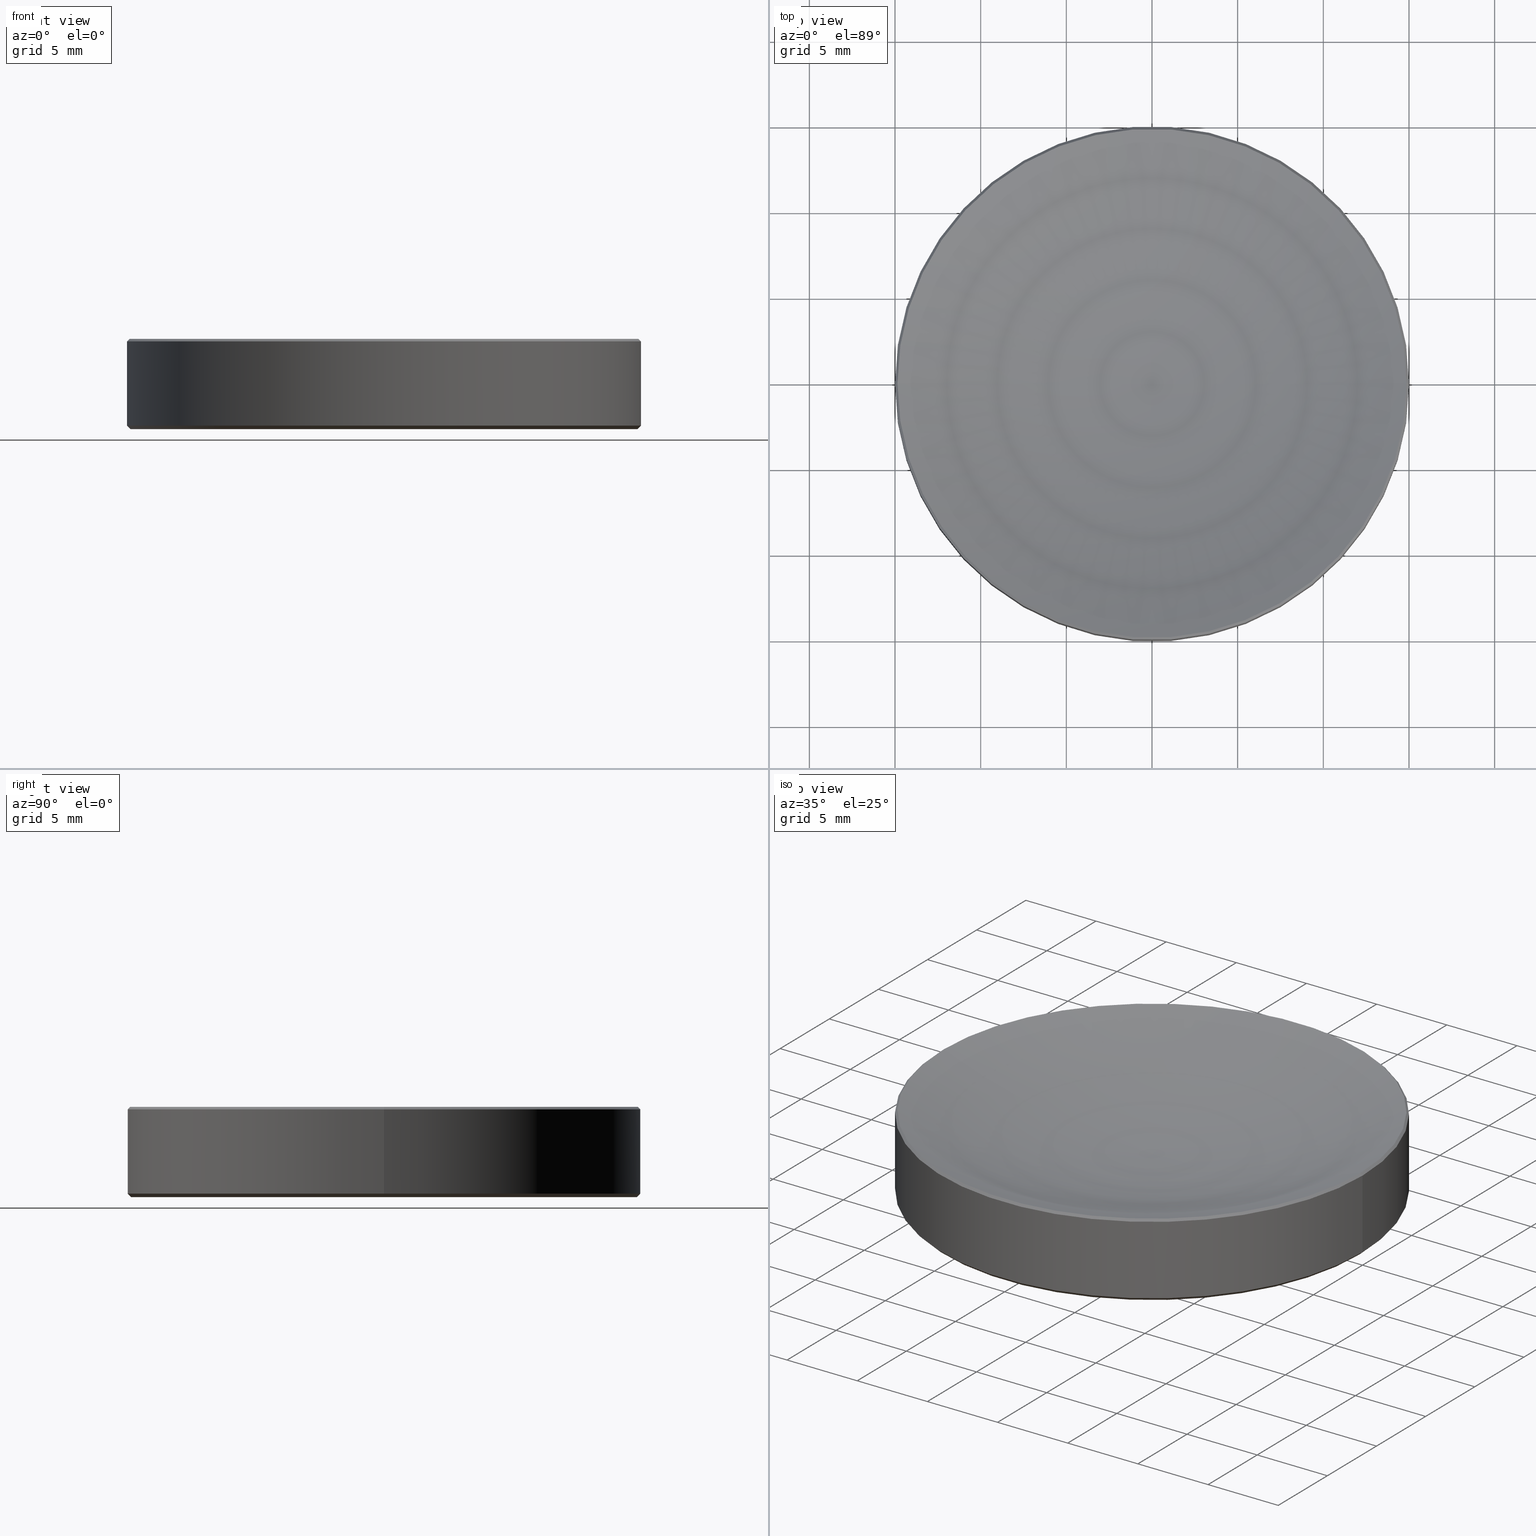
[diagram: canonical four-view strip — front | top / right | iso, engineering-drawing reading convention]
A machine part, canonical four-view strip (front | top / right | iso — engineering-drawing reading convention). The complete STEP part file that produces these views, byte-faithful:
ISO-10303-21;
HEADER;
FILE_DESCRIPTION (( 'STEP AP214' ),
    '1' );
FILE_NAME ('GL13-030-080.STEP',
    '2022-10-25T13:46:05',
    ( '' ),
    ( '' ),
    'SwSTEP 2.0',
    'SolidWorks 2022',
    '' );
FILE_SCHEMA (( 'AUTOMOTIVE_DESIGN' ));
ENDSEC;

DATA;
#1 = FACE_OUTER_BOUND ( 'NONE', #213, .T. ) ;
#2 = ORIENTED_EDGE ( 'NONE', *, *, #79, .F. ) ;
#3 = AXIS2_PLACEMENT_3D ( 'NONE', #100, #265, #137 ) ;
#4 = LINE ( 'NONE', #237, #114 ) ;
#5 = ORIENTED_EDGE ( 'NONE', *, *, #55, .F. ) ;
#6 = DIRECTION ( 'NONE',  ( -0.000000000000000000, -0.000000000000000000, 1.000000000000000000 ) ) ;
#7 = DIRECTION ( 'NONE',  ( 1.000000000000000000, 0.000000000000000000, 0.000000000000000000 ) ) ;
#8 = CARTESIAN_POINT ( 'NONE',  ( 15.00000000000000000, 0.000000000000000000, 2.500000000000000000 ) ) ;
#9 = DIRECTION ( 'NONE',  ( -1.000000000000000000, 0.000000000000000000, 0.000000000000000000 ) ) ;
#10 = CIRCLE ( 'NONE', #167, 41.30000000000000426 ) ;
#11 = SURFACE_SIDE_STYLE ('',( #203 ) ) ;
#12 = PRODUCT_DEFINITION ( 'δ֪', '', #76, #192 ) ;
#13 = DIRECTION ( 'NONE',  ( 0.000000000000000000, 0.000000000000000000, -1.000000000000000000 ) ) ;
#14 = DIRECTION ( 'NONE',  ( 1.000000000000000000, 0.000000000000000000, 0.000000000000000000 ) ) ;
#15 = ADVANCED_FACE ( 'NONE', ( #209 ), #138, .F. ) ;
#16 = CARTESIAN_POINT ( 'NONE',  ( 14.79999999999999361, 0.000000000000000000, 9.184850993605147944E-16 ) ) ;
#17 = AXIS2_PLACEMENT_3D ( 'NONE', #183, #13, #103 ) ;
#18 = CIRCLE ( 'NONE', #126, 15.00000000000000000 ) ;
#19 = PRODUCT ( 'GL13-030-080', 'GL13-030-080', '', ( #261 ) ) ;
#20 = CLOSED_SHELL ( 'NONE', ( #154, #112, #72, #15, #257, #184, #43, #93, #36 ) ) ;
#21 = ORIENTED_EDGE ( 'NONE', *, *, #238, .T. ) ;
#22 = EDGE_CURVE ( 'NONE', #249, #136, #110, .T. ) ;
#23 = ORIENTED_EDGE ( 'NONE', *, *, #62, .T. ) ;
#24 = VERTEX_POINT ( 'NONE', #89 ) ;
#25 = AXIS2_PLACEMENT_3D ( 'NONE', #155, #212, #134 ) ;
#26 = DIRECTION ( 'NONE',  ( 1.000000000000000000, 0.000000000000000000, 0.000000000000000000 ) ) ;
#27 = EDGE_CURVE ( 'NONE', #193, #191, #4, .T. ) ;
#28 = CARTESIAN_POINT ( 'NONE',  ( 0.000000000000000000, 0.000000000000000000, 9.184850993605147944E-16 ) ) ;
#29 = SURFACE_STYLE_FILL_AREA ( #197 ) ;
#30 = VERTEX_POINT ( 'NONE', #92 ) ;
#31 = CARTESIAN_POINT ( 'NONE',  ( 0.000000000000000000, 0.000000000000000000, 0.2000000000000048683 ) ) ;
#32 = AXIS2_PLACEMENT_3D ( 'NONE', #28, #111, #174 ) ;
#33 = CARTESIAN_POINT ( 'NONE',  ( -14.79999999999999361, 1.824723730729555837E-15, 9.184850993605147944E-16 ) ) ;
#34 = CIRCLE ( 'NONE', #246, 14.79999999999999361 ) ;
#35 = CARTESIAN_POINT ( 'NONE',  ( -15.00000000000000000, 1.836970198721029589E-15, 2.500000000000000000 ) ) ;
#36 = ADVANCED_FACE ( 'NONE', ( #173 ), #231, .T. ) ;
#37 = DIRECTION ( 'NONE',  ( 1.000000000000000000, 0.000000000000000000, 0.000000000000000000 ) ) ;
#38 =( NAMED_UNIT ( * ) PLANE_ANGLE_UNIT ( ) SI_UNIT ( $, .RADIAN. ) );
#39 =( LENGTH_UNIT ( ) NAMED_UNIT ( * ) SI_UNIT ( .MILLI., .METRE. ) );
#40 = CONICAL_SURFACE ( 'NONE', #150, 14.85587050448260449, 0.7853981633974843612 ) ;
#41 = PLANE ( 'NONE',  #32 ) ;
#42 = ORIENTED_EDGE ( 'NONE', *, *, #67, .T. ) ;
#43 = ADVANCED_FACE ( 'NONE', ( #172 ), #41, .F. ) ;
#44 = AXIS2_PLACEMENT_3D ( 'NONE', #182, #266, #102 ) ;
#45 = EDGE_LOOP ( 'NONE', ( #232, #230, #152, #153 ) ) ;
#46 = APPLICATION_CONTEXT ( 'automotive_design' ) ;
#47 = AXIS2_PLACEMENT_3D ( 'NONE', #220, #179, #121 ) ;
#48 = VERTEX_POINT ( 'NONE', #127 ) ;
#49 =( LENGTH_UNIT ( ) NAMED_UNIT ( * ) SI_UNIT ( .MILLI., .METRE. ) );
#50 = ORIENTED_EDGE ( 'NONE', *, *, #62, .F. ) ;
#51 = PRESENTATION_LAYER_ASSIGNMENT (  '', '', ( #163 ) ) ;
#52 = FACE_OUTER_BOUND ( 'NONE', #96, .T. ) ;
#53 =( NAMED_UNIT ( * ) PLANE_ANGLE_UNIT ( ) SI_UNIT ( $, .RADIAN. ) );
#54 = SURFACE_STYLE_USAGE ( .BOTH. , #236 ) ;
#55 = EDGE_CURVE ( 'NONE', #168, #24, #133, .T. ) ;
#56 = PRESENTATION_STYLE_ASSIGNMENT (( #158 ) ) ;
#57 = TOROIDAL_SURFACE ( 'NONE', #234, 0.0006800010524327451678, 41.30000000000000426 ) ;
#58 = LINE ( 'NONE', #35, #202 ) ;
#59 = AXIS2_PLACEMENT_3D ( 'NONE', #210, #190, #189 ) ;
#60 = CARTESIAN_POINT ( 'NONE',  ( 0.000000000000000000, 0.000000000000000000, 2.500000000000000000 ) ) ;
#61 = FACE_OUTER_BOUND ( 'NONE', #63, .T. ) ;
#62 = EDGE_CURVE ( 'NONE', #48, #249, #10, .T. ) ;
#63 = EDGE_LOOP ( 'NONE', ( #229, #23, #66 ) ) ;
#64 = APPLICATION_CONTEXT ( 'automotive_design' ) ;
#65 = ORIENTED_EDGE ( 'NONE', *, *, #55, .T. ) ;
#66 = ORIENTED_EDGE ( 'NONE', *, *, #22, .T. ) ;
#67 = EDGE_CURVE ( 'NONE', #191, #24, #221, .T. ) ;
#68 = ORIENTED_EDGE ( 'NONE', *, *, #238, .F. ) ;
#69 = EDGE_LOOP ( 'NONE', ( #50, #170, #235 ) ) ;
#70 = EDGE_LOOP ( 'NONE', ( #85, #186 ) ) ;
#71 = CARTESIAN_POINT ( 'NONE',  ( 0.000000000000000000, 0.000000000000000000, 0.2000000000000048683 ) ) ;
#72 = ADVANCED_FACE ( 'NONE', ( #239 ), #181, .T. ) ;
#73 = UNCERTAINTY_MEASURE_WITH_UNIT (LENGTH_MEASURE( 1.000000000000000082E-05 ), #97, 'distance_accuracy_value', 'NONE');
#74 = DIRECTION ( 'NONE',  ( -0.000000000000000000, -0.000000000000000000, 1.000000000000000000 ) ) ;
#75 = AXIS2_PLACEMENT_3D ( 'NONE', #71, #101, #161 ) ;
#76 = PRODUCT_DEFINITION_FORMATION_WITH_SPECIFIED_SOURCE ( '�κ�', '', #19, .NOT_KNOWN. ) ;
#77 = APPLICATION_PROTOCOL_DEFINITION ( 'draft international standard', 'automotive_design', 1998, #64 ) ;
#78 = DIRECTION ( 'NONE',  ( 0.000000000000000000, 0.000000000000000000, -1.000000000000000000 ) ) ;
#79 = EDGE_CURVE ( 'NONE', #193, #132, #139, .T. ) ;
#80 = DIRECTION ( 'NONE',  ( 1.000000000000000000, 0.000000000000000000, 0.000000000000000000 ) ) ;
#81 =( NAMED_UNIT ( * ) SI_UNIT ( $, .STERADIAN. ) SOLID_ANGLE_UNIT ( ) );
#82 = CARTESIAN_POINT ( 'NONE',  ( 0.000000000000000000, 0.000000000000000000, 5.264129495517397395 ) ) ;
#83 = EDGE_CURVE ( 'NONE', #30, #168, #58, .T. ) ;
#84 = CARTESIAN_POINT ( 'NONE',  ( 14.85587050448259916, 0.000000000000000000, 5.264129495517397395 ) ) ;
#85 = ORIENTED_EDGE ( 'NONE', *, *, #79, .T. ) ;
#86 = AXIS2_PLACEMENT_3D ( 'NONE', #82, #166, #185 ) ;
#87 = DIRECTION ( 'NONE',  ( -0.7071067811865729968, 0.000000000000000000, -0.7071067811865220376 ) ) ;
#88 = COLOUR_RGB ( '',1.000000000000000000, 1.000000000000000000, 1.000000000000000000 ) ;
#89 = CARTESIAN_POINT ( 'NONE',  ( 15.00000000000000000, 0.000000000000000000, 5.120000000000013429 ) ) ;
#90 = ORIENTED_EDGE ( 'NONE', *, *, #27, .T. ) ;
#91 = MECHANICAL_DESIGN_GEOMETRIC_PRESENTATION_REPRESENTATION (  '', ( #160 ), #143 ) ;
#92 = CARTESIAN_POINT ( 'NONE',  ( -15.00000000000000000, 1.836970198721029589E-15, 0.2000000000000048683 ) ) ;
#93 = ADVANCED_FACE ( 'NONE', ( #52 ), #205, .T. ) ;
#94 = MANIFOLD_SOLID_BREP ( '����2', #20 ) ;
#95 = DIRECTION ( 'NONE',  ( 0.7071067811865505703, 0.000000000000000000, 0.7071067811865444641 ) ) ;
#96 = EDGE_LOOP ( 'NONE', ( #68, #2, #90, #129 ) ) ;
#97 =( LENGTH_UNIT ( ) NAMED_UNIT ( * ) SI_UNIT ( .MILLI., .METRE. ) );
#98 = LINE ( 'NONE', #175, #178 ) ;
#99 = DIRECTION ( 'NONE',  ( 1.000000000000000000, 0.000000000000000000, 0.000000000000000000 ) ) ;
#100 = CARTESIAN_POINT ( 'NONE',  ( 0.000000000000000000, 0.000000000000000000, 9.184850993605147944E-16 ) ) ;
#101 = DIRECTION ( 'NONE',  ( -0.000000000000000000, -0.000000000000000000, 1.000000000000000000 ) ) ;
#102 = DIRECTION ( 'NONE',  ( -1.000000000000000000, 1.224646799147353207E-16, 0.000000000000000000 ) ) ;
#103 = DIRECTION ( 'NONE',  ( -1.000000000000000000, 0.000000000000000000, 0.000000000000000000 ) ) ;
#104 = EDGE_LOOP ( 'NONE', ( #107, #165, #5, #254 ) ) ;
#105 = CARTESIAN_POINT ( 'NONE',  ( -15.00000000000000000, 1.836970198721029589E-15, 0.2000000000000048683 ) ) ;
#106 =( GEOMETRIC_REPRESENTATION_CONTEXT ( 3 ) GLOBAL_UNCERTAINTY_ASSIGNED_CONTEXT ( ( #142 ) ) GLOBAL_UNIT_ASSIGNED_CONTEXT ( ( #39, #38, #248 ) ) REPRESENTATION_CONTEXT ( 'NONE', 'WORKASPACE' ) );
#107 = ORIENTED_EDGE ( 'NONE', *, *, #22, .F. ) ;
#108 = EDGE_CURVE ( 'NONE', #191, #30, #18, .T. ) ;
#109 = ORIENTED_EDGE ( 'NONE', *, *, #140, .F. ) ;
#110 = CIRCLE ( 'NONE', #59, 14.85587050448260094 ) ;
#111 = DIRECTION ( 'NONE',  ( 0.000000000000000000, -0.000000000000000000, 1.000000000000000000 ) ) ;
#112 = ADVANCED_FACE ( 'NONE', ( #259 ), #162, .T. ) ;
#113 = EDGE_LOOP ( 'NONE', ( #227, #208, #65, #258 ) ) ;
#114 = VECTOR ( 'NONE', #95, 1000.000000000000000 ) ;
#115 = DIRECTION ( 'NONE',  ( -0.000000000000000000, -0.000000000000000000, 1.000000000000000000 ) ) ;
#116 = CARTESIAN_POINT ( 'NONE',  ( 0.000000000000000000, 0.000000000000000000, 0.000000000000000000 ) ) ;
#117 = EDGE_CURVE ( 'NONE', #30, #191, #187, .T. ) ;
#118 = CARTESIAN_POINT ( 'NONE',  ( -14.85587050448259916, 1.819319426186219465E-15, 5.264129495517397395 ) ) ;
#119 = CARTESIAN_POINT ( 'NONE',  ( 0.000000000000000000, 0.000000000000000000, 2.500000000000000000 ) ) ;
#120 = CARTESIAN_POINT ( 'NONE',  ( 0.000000000000000000, 0.000000000000000000, 0.2000000000000048683 ) ) ;
#121 = DIRECTION ( 'NONE',  ( -1.000000000000000000, 0.000000000000000000, 0.000000000000000000 ) ) ;
#122 = AXIS2_PLACEMENT_3D ( 'NONE', #247, #180, #37 ) ;
#123 = CARTESIAN_POINT ( 'NONE',  ( -14.85587050448260449, 0.000000000000000000, 5.264129495517397395 ) ) ;
#124 = CYLINDRICAL_SURFACE ( 'NONE', #214, 15.00000000000000000 ) ;
#125 = VECTOR ( 'NONE', #87, 1000.000000000000000 ) ;
#126 = AXIS2_PLACEMENT_3D ( 'NONE', #120, #218, #217 ) ;
#127 = CARTESIAN_POINT ( 'NONE',  ( 0.000000000000000000, 0.000000000000000000, 2.500000000000000000 ) ) ;
#128 = EDGE_CURVE ( 'NONE', #249, #24, #98, .T. ) ;
#129 = ORIENTED_EDGE ( 'NONE', *, *, #117, .F. ) ;
#130 = CIRCLE ( 'NONE', #44, 41.30000000000000426 ) ;
#131 =( GEOMETRIC_REPRESENTATION_CONTEXT ( 3 ) GLOBAL_UNCERTAINTY_ASSIGNED_CONTEXT ( ( #264 ) ) GLOBAL_UNIT_ASSIGNED_CONTEXT ( ( #49, #135, #216 ) ) REPRESENTATION_CONTEXT ( 'NONE', 'WORKASPACE' ) );
#132 = VERTEX_POINT ( 'NONE', #33 ) ;
#133 = CIRCLE ( 'NONE', #47, 15.00000000000000000 ) ;
#134 = DIRECTION ( 'NONE',  ( -1.000000000000000000, 0.000000000000000000, 0.000000000000000000 ) ) ;
#135 =( NAMED_UNIT ( * ) PLANE_ANGLE_UNIT ( ) SI_UNIT ( $, .RADIAN. ) );
#136 = VERTEX_POINT ( 'NONE', #118 ) ;
#137 = DIRECTION ( 'NONE',  ( 1.000000000000000000, 0.000000000000000000, 0.000000000000000000 ) ) ;
#138 = TOROIDAL_SURFACE ( 'NONE', #226, 0.0006800010524327451678, 41.30000000000000426 ) ;
#139 = CIRCLE ( 'NONE', #3, 14.79999999999999361 ) ;
#140 = EDGE_CURVE ( 'NONE', #132, #193, #34, .T. ) ;
#141 = FILL_AREA_STYLE ('',( #145 ) ) ;
#142 = UNCERTAINTY_MEASURE_WITH_UNIT (LENGTH_MEASURE( 1.000000000000000082E-05 ), #39, 'distance_accuracy_value', 'NONE');
#143 =( GEOMETRIC_REPRESENTATION_CONTEXT ( 3 ) GLOBAL_UNCERTAINTY_ASSIGNED_CONTEXT ( ( #73 ) ) GLOBAL_UNIT_ASSIGNED_CONTEXT ( ( #97, #53, #81 ) ) REPRESENTATION_CONTEXT ( 'NONE', 'WORKASPACE' ) );
#144 = MECHANICAL_DESIGN_GEOMETRIC_PRESENTATION_REPRESENTATION (  '', ( #163 ), #131 ) ;
#145 = FILL_AREA_STYLE_COLOUR ( '', #88 ) ;
#146 = CIRCLE ( 'NONE', #17, 15.00000000000000000 ) ;
#147 = FILL_AREA_STYLE_COLOUR ( '', #207 ) ;
#148 = LINE ( 'NONE', #105, #177 ) ;
#149 = EDGE_LOOP ( 'NONE', ( #109, #21, #256, #211 ) ) ;
#150 = AXIS2_PLACEMENT_3D ( 'NONE', #244, #219, #9 ) ;
#151 = CARTESIAN_POINT ( 'NONE',  ( 0.000000000000000000, 0.000000000000000000, 43.79999999440192227 ) ) ;
#152 = ORIENTED_EDGE ( 'NONE', *, *, #201, .T. ) ;
#153 = ORIENTED_EDGE ( 'NONE', *, *, #215, .F. ) ;
#154 = ADVANCED_FACE ( 'NONE', ( #262 ), #40, .T. ) ;
#155 = CARTESIAN_POINT ( 'NONE',  ( 0.000000000000000000, 0.000000000000000000, 5.264129495517397395 ) ) ;
#156 = PRESENTATION_LAYER_ASSIGNMENT (  '', '', ( #160 ) ) ;
#157 = ORIENTED_EDGE ( 'NONE', *, *, #117, .T. ) ;
#158 = SURFACE_STYLE_USAGE ( .BOTH. , #11 ) ;
#159 = PRESENTATION_STYLE_ASSIGNMENT (( #54 ) ) ;
#160 = STYLED_ITEM ( 'NONE', ( #56 ), #94 ) ;
#161 = DIRECTION ( 'NONE',  ( 1.000000000000000000, 0.000000000000000000, 0.000000000000000000 ) ) ;
#162 = CONICAL_SURFACE ( 'NONE', #75, 15.00000000000000000, 0.7853981633974526089 ) ;
#163 = STYLED_ITEM ( 'NONE', ( #159 ), #169 ) ;
#164 = CARTESIAN_POINT ( 'NONE',  ( 15.00000000000000000, 0.000000000000000000, 0.2000000000000048683 ) ) ;
#165 = ORIENTED_EDGE ( 'NONE', *, *, #128, .T. ) ;
#166 = DIRECTION ( 'NONE',  ( -0.000000000000000000, -0.000000000000000000, 1.000000000000000000 ) ) ;
#167 = AXIS2_PLACEMENT_3D ( 'NONE', #263, #240, #78 ) ;
#168 = VERTEX_POINT ( 'NONE', #206 ) ;
#169 = ADVANCED_BREP_SHAPE_REPRESENTATION ( 'GL13-030-080', ( #94, #188 ), #106 ) ;
#170 = ORIENTED_EDGE ( 'NONE', *, *, #242, .T. ) ;
#171 = VECTOR ( 'NONE', #245, 1000.000000000000000 ) ;
#172 = FACE_OUTER_BOUND ( 'NONE', #70, .T. ) ;
#173 = FACE_OUTER_BOUND ( 'NONE', #45, .T. ) ;
#174 = DIRECTION ( 'NONE',  ( 1.000000000000000000, 0.000000000000000000, 0.000000000000000000 ) ) ;
#175 = CARTESIAN_POINT ( 'NONE',  ( 14.85587050448260449, 1.819319426186219859E-15, 5.264129495517397395 ) ) ;
#176 = APPLICATION_PROTOCOL_DEFINITION ( 'draft international standard', 'automotive_design', 1998, #46 ) ;
#177 = VECTOR ( 'NONE', #224, 1000.000000000000000 ) ;
#178 = VECTOR ( 'NONE', #260, 1000.000000000000000 ) ;
#179 = DIRECTION ( 'NONE',  ( 0.000000000000000000, 0.000000000000000000, -1.000000000000000000 ) ) ;
#180 = DIRECTION ( 'NONE',  ( -0.000000000000000000, -0.000000000000000000, 1.000000000000000000 ) ) ;
#181 = CYLINDRICAL_SURFACE ( 'NONE', #241, 15.00000000000000000 ) ;
#182 = CARTESIAN_POINT ( 'NONE',  ( -0.0006800010524327451678, 8.327611122785927967E-20, 43.79999999440192227 ) ) ;
#183 = CARTESIAN_POINT ( 'NONE',  ( 0.000000000000000000, 0.000000000000000000, 5.120000000000013429 ) ) ;
#184 = ADVANCED_FACE ( 'NONE', ( #1 ), #124, .T. ) ;
#185 = DIRECTION ( 'NONE',  ( 1.000000000000000000, 0.000000000000000000, 0.000000000000000000 ) ) ;
#186 = ORIENTED_EDGE ( 'NONE', *, *, #140, .T. ) ;
#187 = CIRCLE ( 'NONE', #223, 15.00000000000000000 ) ;
#188 = AXIS2_PLACEMENT_3D ( 'NONE', #116, #194, #7 ) ;
#189 = DIRECTION ( 'NONE',  ( 1.000000000000000000, 0.000000000000000000, 0.000000000000000000 ) ) ;
#190 = DIRECTION ( 'NONE',  ( -0.000000000000000000, -0.000000000000000000, 1.000000000000000000 ) ) ;
#191 = VERTEX_POINT ( 'NONE', #164 ) ;
#192 = PRODUCT_DEFINITION_CONTEXT ( 'detailed design', #64, 'design' ) ;
#193 = VERTEX_POINT ( 'NONE', #16 ) ;
#194 = DIRECTION ( 'NONE',  ( 0.000000000000000000, 0.000000000000000000, 1.000000000000000000 ) ) ;
#195 = DIRECTION ( 'NONE',  ( 1.000000000000000000, 0.000000000000000000, 0.000000000000000000 ) ) ;
#196 = PRODUCT_DEFINITION_SHAPE ( 'NONE', 'NONE',  #12 ) ;
#197 = FILL_AREA_STYLE ('',( #147 ) ) ;
#198 = DIRECTION ( 'NONE',  ( 0.000000000000000000, 0.000000000000000000, -1.000000000000000000 ) ) ;
#199 = CIRCLE ( 'NONE', #86, 14.85587050448260094 ) ;
#200 = CARTESIAN_POINT ( 'NONE',  ( 0.000000000000000000, 0.000000000000000000, 9.184850993605147944E-16 ) ) ;
#201 = EDGE_CURVE ( 'NONE', #136, #168, #251, .T. ) ;
#202 = VECTOR ( 'NONE', #74, 1000.000000000000000 ) ;
#203 = SURFACE_STYLE_FILL_AREA ( #141 ) ;
#204 = DIRECTION ( 'NONE',  ( 1.000000000000000000, 0.000000000000000000, 0.000000000000000000 ) ) ;
#205 = CONICAL_SURFACE ( 'NONE', #122, 15.00000000000000000, 0.7853981633974526089 ) ;
#206 = CARTESIAN_POINT ( 'NONE',  ( -15.00000000000000000, 1.836970198721029589E-15, 5.120000000000013429 ) ) ;
#207 = COLOUR_RGB ( '',1.000000000000000000, 1.000000000000000000, 1.000000000000000000 ) ;
#208 = ORIENTED_EDGE ( 'NONE', *, *, #83, .T. ) ;
#209 = FACE_OUTER_BOUND ( 'NONE', #69, .T. ) ;
#210 = CARTESIAN_POINT ( 'NONE',  ( 0.000000000000000000, 0.000000000000000000, 5.264129495517397395 ) ) ;
#211 = ORIENTED_EDGE ( 'NONE', *, *, #27, .F. ) ;
#212 = DIRECTION ( 'NONE',  ( 0.000000000000000000, 0.000000000000000000, -1.000000000000000000 ) ) ;
#213 = EDGE_LOOP ( 'NONE', ( #253, #157, #42, #255 ) ) ;
#214 = AXIS2_PLACEMENT_3D ( 'NONE', #60, #225, #204 ) ;
#215 = EDGE_CURVE ( 'NONE', #24, #168, #146, .T. ) ;
#216 =( NAMED_UNIT ( * ) SI_UNIT ( $, .STERADIAN. ) SOLID_ANGLE_UNIT ( ) );
#217 = DIRECTION ( 'NONE',  ( 1.000000000000000000, 0.000000000000000000, 0.000000000000000000 ) ) ;
#218 = DIRECTION ( 'NONE',  ( -0.000000000000000000, -0.000000000000000000, 1.000000000000000000 ) ) ;
#219 = DIRECTION ( 'NONE',  ( 0.000000000000000000, 0.000000000000000000, -1.000000000000000000 ) ) ;
#220 = CARTESIAN_POINT ( 'NONE',  ( 0.000000000000000000, 0.000000000000000000, 5.120000000000013429 ) ) ;
#221 = LINE ( 'NONE', #8, #171 ) ;
#222 = CARTESIAN_POINT ( 'NONE',  ( 0.000000000000000000, 0.000000000000000000, 43.79999999440192227 ) ) ;
#223 = AXIS2_PLACEMENT_3D ( 'NONE', #31, #115, #195 ) ;
#224 = DIRECTION ( 'NONE',  ( -0.7071067811865505703, 8.659560562354969836E-17, 0.7071067811865444641 ) ) ;
#225 = DIRECTION ( 'NONE',  ( -0.000000000000000000, -0.000000000000000000, 1.000000000000000000 ) ) ;
#226 = AXIS2_PLACEMENT_3D ( 'NONE', #151, #233, #26 ) ;
#227 = ORIENTED_EDGE ( 'NONE', *, *, #108, .T. ) ;
#228 = PRODUCT_RELATED_PRODUCT_CATEGORY ( 'part', '', ( #19 ) ) ;
#229 = ORIENTED_EDGE ( 'NONE', *, *, #242, .F. ) ;
#230 = ORIENTED_EDGE ( 'NONE', *, *, #250, .F. ) ;
#231 = CONICAL_SURFACE ( 'NONE', #25, 14.85587050448260449, 0.7853981633974843612 ) ;
#232 = ORIENTED_EDGE ( 'NONE', *, *, #128, .F. ) ;
#233 = DIRECTION ( 'NONE',  ( -0.000000000000000000, -0.000000000000000000, 1.000000000000000000 ) ) ;
#234 = AXIS2_PLACEMENT_3D ( 'NONE', #222, #252, #14 ) ;
#235 = ORIENTED_EDGE ( 'NONE', *, *, #250, .T. ) ;
#236 = SURFACE_SIDE_STYLE ('',( #29 ) ) ;
#237 = CARTESIAN_POINT ( 'NONE',  ( 15.00000000000000000, 0.000000000000000000, 0.2000000000000048683 ) ) ;
#238 = EDGE_CURVE ( 'NONE', #132, #30, #148, .T. ) ;
#239 = FACE_OUTER_BOUND ( 'NONE', #113, .T. ) ;
#240 = DIRECTION ( 'NONE',  ( 0.000000000000000000, -1.000000000000000000, 0.000000000000000000 ) ) ;
#241 = AXIS2_PLACEMENT_3D ( 'NONE', #119, #6, #80 ) ;
#242 = EDGE_CURVE ( 'NONE', #48, #136, #130, .T. ) ;
#243 = SHAPE_DEFINITION_REPRESENTATION ( #196, #169 ) ;
#244 = CARTESIAN_POINT ( 'NONE',  ( 0.000000000000000000, 0.000000000000000000, 5.264129495517397395 ) ) ;
#245 = DIRECTION ( 'NONE',  ( -0.000000000000000000, -0.000000000000000000, 1.000000000000000000 ) ) ;
#246 = AXIS2_PLACEMENT_3D ( 'NONE', #200, #198, #99 ) ;
#247 = CARTESIAN_POINT ( 'NONE',  ( 0.000000000000000000, 0.000000000000000000, 0.2000000000000048683 ) ) ;
#248 =( NAMED_UNIT ( * ) SI_UNIT ( $, .STERADIAN. ) SOLID_ANGLE_UNIT ( ) );
#249 = VERTEX_POINT ( 'NONE', #84 ) ;
#250 = EDGE_CURVE ( 'NONE', #136, #249, #199, .T. ) ;
#251 = LINE ( 'NONE', #123, #125 ) ;
#252 = DIRECTION ( 'NONE',  ( -0.000000000000000000, -0.000000000000000000, 1.000000000000000000 ) ) ;
#253 = ORIENTED_EDGE ( 'NONE', *, *, #83, .F. ) ;
#254 = ORIENTED_EDGE ( 'NONE', *, *, #201, .F. ) ;
#255 = ORIENTED_EDGE ( 'NONE', *, *, #215, .T. ) ;
#256 = ORIENTED_EDGE ( 'NONE', *, *, #108, .F. ) ;
#257 = ADVANCED_FACE ( 'NONE', ( #61 ), #57, .F. ) ;
#258 = ORIENTED_EDGE ( 'NONE', *, *, #67, .F. ) ;
#259 = FACE_OUTER_BOUND ( 'NONE', #149, .T. ) ;
#260 = DIRECTION ( 'NONE',  ( 0.7071067811865729968, 8.659560562355244705E-17, -0.7071067811865220376 ) ) ;
#261 = PRODUCT_CONTEXT ( 'NONE', #46, 'mechanical' ) ;
#262 = FACE_OUTER_BOUND ( 'NONE', #104, .T. ) ;
#263 = CARTESIAN_POINT ( 'NONE',  ( 0.0006800010524327451678, 0.000000000000000000, 43.79999999440192227 ) ) ;
#264 = UNCERTAINTY_MEASURE_WITH_UNIT (LENGTH_MEASURE( 1.000000000000000082E-05 ), #49, 'distance_accuracy_value', 'NONE');
#265 = DIRECTION ( 'NONE',  ( 0.000000000000000000, 0.000000000000000000, -1.000000000000000000 ) ) ;
#266 = DIRECTION ( 'NONE',  ( 1.224646799147353207E-16, 1.000000000000000000, 0.000000000000000000 ) ) ;
ENDSEC;
END-ISO-10303-21;
